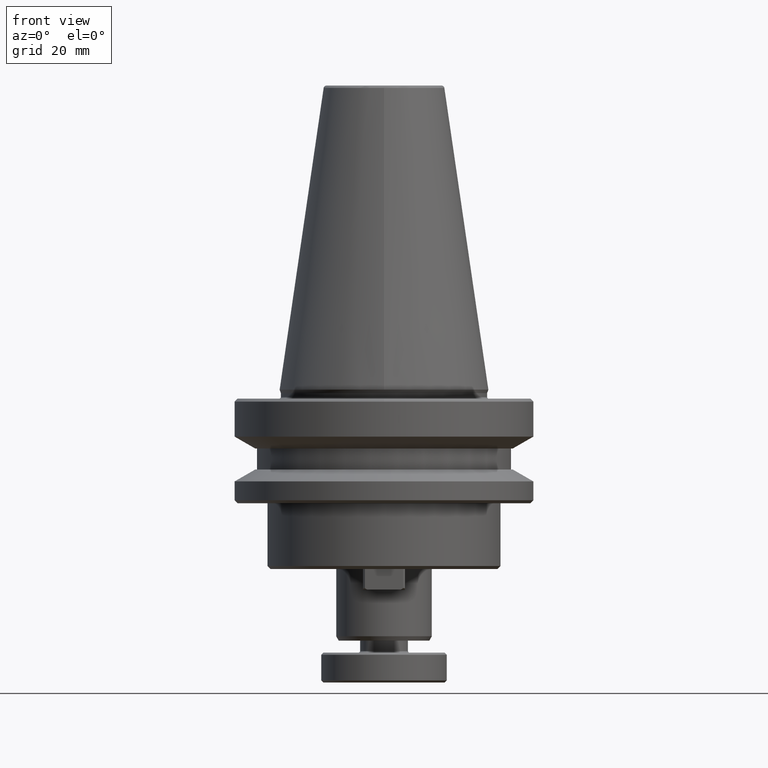
[diagram: clean part render]
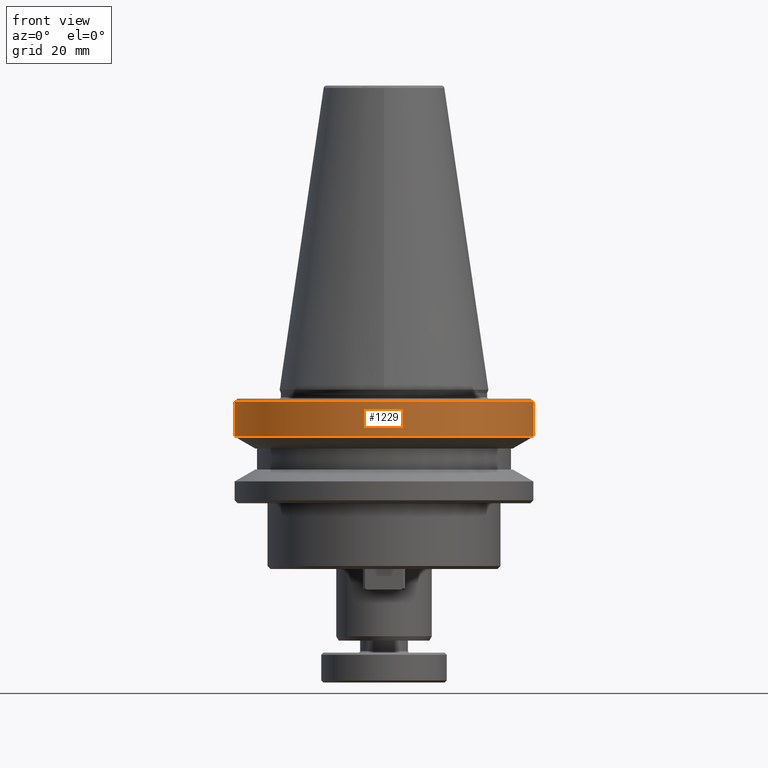
[diagram: same view with one face highlighted and labeled with its STEP entity id]
A machine part, front view. The second image highlights one B-rep face of the part: STEP entity #1229.
In plain terms, the highlighted cylindrical surface (partial cylindrical patch) has radius 50 mm, axis along (0, 0, 1).
Its self-contained STEP definition (entity closure, byte-faithful):
#10 = ORIENTED_EDGE ( 'NONE', *, *, #382, .F. ) ;
#73 = DIRECTION ( 'NONE',  ( 0.0000000000000000000, 0.0000000000000000000, 1.000000000000000000 ) ) ;
#74 = CARTESIAN_POINT ( 'NONE',  ( 0.0000000000000000000, 0.0000000000000000000, 124.5046326327850600 ) ) ;
#81 = EDGE_CURVE ( 'NONE', #2513, #1628, #1443, .T. ) ;
#88 = DIRECTION ( 'NONE',  ( 1.000000000000000000, 0.0000000000000000000, 0.0000000000000000000 ) ) ;
#90 = VECTOR ( 'NONE', #1977, 1000.000000000000000 ) ;
#103 = CIRCLE ( 'NONE', #1716, 50.00000000000000000 ) ;
#257 = VERTEX_POINT ( 'NONE', #1261 ) ;
#301 = EDGE_CURVE ( 'NONE', #2621, #257, #103, .T. ) ;
#382 = EDGE_CURVE ( 'NONE', #1628, #467, #430, .T. ) ;
#430 = CIRCLE ( 'NONE', #580, 50.00000000000000000 ) ;
#467 = VERTEX_POINT ( 'NONE', #1062 ) ;
#480 = ORIENTED_EDGE ( 'NONE', *, *, #81, .F. ) ;
#580 = AXIS2_PLACEMENT_3D ( 'NONE', #2189, #2186, #2349 ) ;
#651 = FACE_OUTER_BOUND ( 'NONE', #2436, .T. ) ;
#674 = DIRECTION ( 'NONE',  ( 0.0000000000000000000, 0.0000000000000000000, 1.000000000000000000 ) ) ;
#676 = CARTESIAN_POINT ( 'NONE',  ( -50.00000000000000000, 6.123233995736766100E-015, 124.5046326327850600 ) ) ;
#794 = EDGE_CURVE ( 'NONE', #2621, #2513, #1708, .T. ) ;
#964 = ORIENTED_EDGE ( 'NONE', *, *, #301, .T. ) ;
#970 = AXIS2_PLACEMENT_3D ( 'NONE', #1705, #1702, #1778 ) ;
#1062 = CARTESIAN_POINT ( 'NONE',  ( 50.00000000000000000, 0.0000000000000000000, -3.999999999999989800 ) ) ;
#1091 = CARTESIAN_POINT ( 'NONE',  ( -50.00000000000000000, 6.123233995736765300E-015, -15.70022000322675400 ) ) ;
#1229 = ADVANCED_FACE ( 'NONE', ( #651 ), #2395, .T. ) ;
#1261 = CARTESIAN_POINT ( 'NONE',  ( 50.00000000000000000, 0.0000000000000000000, -15.70022000322675400 ) ) ;
#1420 = ORIENTED_EDGE ( 'NONE', *, *, #2155, .T. ) ;
#1424 = CARTESIAN_POINT ( 'NONE',  ( -50.00000000000000000, 6.123233995736766100E-015, -3.999999999999989800 ) ) ;
#1443 = CIRCLE ( 'NONE', #970, 50.00000000000000000 ) ;
#1488 = CARTESIAN_POINT ( 'NONE',  ( 0.0000000000000000000, 0.0000000000000000000, -15.70022000322675400 ) ) ;
#1628 = VERTEX_POINT ( 'NONE', #1690 ) ;
#1690 = CARTESIAN_POINT ( 'NONE',  ( 6.123233995736766100E-015, -50.00000000000000000, -3.999999999999989800 ) ) ;
#1702 = DIRECTION ( 'NONE',  ( -0.0000000000000000000, -0.0000000000000000000, 1.000000000000000000 ) ) ;
#1705 = CARTESIAN_POINT ( 'NONE',  ( 0.0000000000000000000, 0.0000000000000000000, -3.999999999999989800 ) ) ;
#1708 = LINE ( 'NONE', #676, #2288 ) ;
#1716 = AXIS2_PLACEMENT_3D ( 'NONE', #1488, #1728, #2358 ) ;
#1728 = DIRECTION ( 'NONE',  ( 0.0000000000000000000, 0.0000000000000000000, 1.000000000000000000 ) ) ;
#1778 = DIRECTION ( 'NONE',  ( -1.000000000000000000, 0.0000000000000000000, -3.469446951953614200E-017 ) ) ;
#1880 = LINE ( 'NONE', #1972, #90 ) ;
#1972 = CARTESIAN_POINT ( 'NONE',  ( 50.00000000000000000, 0.0000000000000000000, 124.5046326327850600 ) ) ;
#1977 = DIRECTION ( 'NONE',  ( 0.0000000000000000000, 0.0000000000000000000, 1.000000000000000000 ) ) ;
#2033 = ORIENTED_EDGE ( 'NONE', *, *, #794, .F. ) ;
#2155 = EDGE_CURVE ( 'NONE', #257, #467, #1880, .T. ) ;
#2186 = DIRECTION ( 'NONE',  ( -0.0000000000000000000, -0.0000000000000000000, 1.000000000000000000 ) ) ;
#2189 = CARTESIAN_POINT ( 'NONE',  ( 0.0000000000000000000, 0.0000000000000000000, -3.999999999999989800 ) ) ;
#2288 = VECTOR ( 'NONE', #674, 1000.000000000000000 ) ;
#2349 = DIRECTION ( 'NONE',  ( -1.000000000000000000, 0.0000000000000000000, -3.469446951953614200E-017 ) ) ;
#2350 = AXIS2_PLACEMENT_3D ( 'NONE', #74, #73, #88 ) ;
#2358 = DIRECTION ( 'NONE',  ( 1.000000000000000000, 0.0000000000000000000, 0.0000000000000000000 ) ) ;
#2395 = CYLINDRICAL_SURFACE ( 'NONE', #2350, 50.00000000000000000 ) ;
#2436 = EDGE_LOOP ( 'NONE', ( #2033, #964, #1420, #10, #480 ) ) ;
#2513 = VERTEX_POINT ( 'NONE', #1424 ) ;
#2621 = VERTEX_POINT ( 'NONE', #1091 ) ;